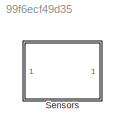
MODEL slx_99f6ecf49d35
KIND model
CONFIG AbsTol = auto
CONFIG EnableMultiTasking = off
CONFIG FixedStep = auto
CONFIG MaxStep = auto
CONFIG MinStep = auto
CONFIG RelTol = 1e-3
CONFIG SampleTimeConstraint = Unconstrained
CONFIG SolverName = VariableStepAuto
CONFIG StartTime = 0.0
CONFIG StopTime = 100
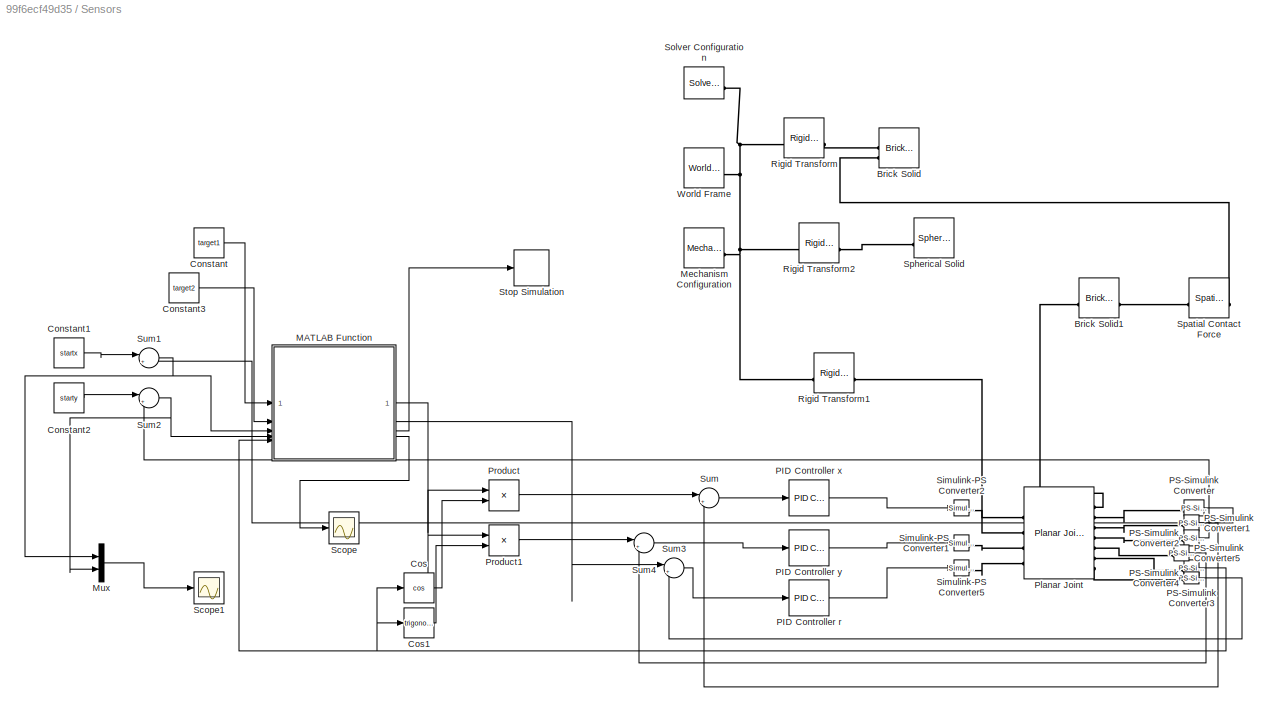
BLOCK [SubSystem] Sensors
BLOCK [Reference] Sensors/Brick Solid  REF=sm_lib/Body Elements/Brick Solid
  NameLocation = left
  SourceBlock = sm_lib/Body Elements/Brick Solid
  SourceType = Brick Solid
BLOCK [Reference] Sensors/Brick Solid1  REF=sm_lib/Body Elements/Brick Solid
  SourceBlock = sm_lib/Body Elements/Brick Solid
  SourceType = Brick Solid
BLOCK [Constant] Sensors/Constant
  Value = target1
BLOCK [Constant] Sensors/Constant1
  Value = startx
BLOCK [Constant] Sensors/Constant2
  Value = starty
BLOCK [Constant] Sensors/Constant3
  Value = target2
BLOCK [Trigonometry] Sensors/Cos
  Operator = cos
BLOCK [Trigonometry] Sensors/Cos1
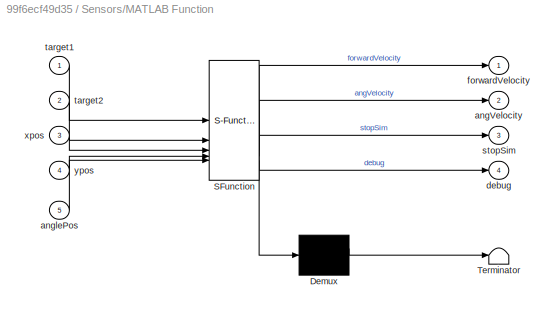
BLOCK [SubSystem] Sensors/MATLAB Function
  ErrorFcn = Stateflow.Translate.translate
  LibrarySourceBlock = simulink/User-Defined\nFunctions/MATLAB Function
  PermitHierarchicalResolution = ExplicitOnly
  SFBlockType = MATLAB Function
  SystemSampleTime = 0.1
  TreatAsAtomicUnit = on
BLOCK [Demux] Sensors/MATLAB Function/ Demux 
  Outputs = 1
BLOCK [S-Function] Sensors/MATLAB Function/ SFunction 
  EnableBusSupport = on
  FunctionName = sf_sfun
  PortCounts = [5 5]
  SFcnIsStateOwnerBlock = off
  SFunctionDeploymentMode = off
  Tag = Stateflow S-Function 2
BLOCK [Terminator] Sensors/MATLAB Function/ Terminator 
BLOCK [Outport] Sensors/MATLAB Function/angVelocity
  Port = 2
BLOCK [Inport] Sensors/MATLAB Function/anglePos
  Port = 5
BLOCK [Outport] Sensors/MATLAB Function/debug
  Port = 4
BLOCK [Outport] Sensors/MATLAB Function/forwardVelocity
BLOCK [Outport] Sensors/MATLAB Function/stopSim
  Port = 3
BLOCK [Inport] Sensors/MATLAB Function/target1
BLOCK [Inport] Sensors/MATLAB Function/target2
  Port = 2
BLOCK [Inport] Sensors/MATLAB Function/xpos
  Port = 3
BLOCK [Inport] Sensors/MATLAB Function/ypos
  Port = 4
BLOCK [Reference] Sensors/Mechanism Configuration  REF=sm_lib/Utilities/Mechanism
Configuration
  SourceBlock = sm_lib/Utilities/Mechanism\nConfiguration
  SourceType = Mechanism\nConfiguration
BLOCK [Mux] Sensors/Mux
  DisplayOption = bar
  Inputs = 2
BLOCK [Reference] Sensors/PID Controller r  REF=slpidlib/PID Controller
  LibrarySourceBlock = simulink/Continuous/PID Controller
  SourceBlock = slpidlib/PID Controller
  SourceType = PID 1dof
BLOCK [Reference] Sensors/PID Controller x  REF=slpidlib/PID Controller
  LibrarySourceBlock = simulink/Continuous/PID Controller
  SourceBlock = slpidlib/PID Controller
  SourceType = PID 1dof
BLOCK [Reference] Sensors/PID Controller y  REF=slpidlib/PID Controller
  LibrarySourceBlock = simulink/Continuous/PID Controller
  SourceBlock = slpidlib/PID Controller
  SourceType = PID 1dof
BLOCK [Reference] Sensors/PS-Simulink Converter  REF=nesl_utility/PS-Simulink
Converter
  SourceBlock = nesl_utility/PS-Simulink\nConverter
  SourceType = PS-Simulink\nConverter
BLOCK [Reference] Sensors/PS-Simulink Converter1  REF=nesl_utility/PS-Simulink
Converter
  SourceBlock = nesl_utility/PS-Simulink\nConverter
  SourceType = PS-Simulink\nConverter
BLOCK [Reference] Sensors/PS-Simulink Converter2  REF=nesl_utility/PS-Simulink
Converter
  SourceBlock = nesl_utility/PS-Simulink\nConverter
  SourceType = PS-Simulink\nConverter
BLOCK [Reference] Sensors/PS-Simulink Converter3  REF=nesl_utility/PS-Simulink
Converter
  SourceBlock = nesl_utility/PS-Simulink\nConverter
  SourceType = PS-Simulink\nConverter
BLOCK [Reference] Sensors/PS-Simulink Converter4  REF=nesl_utility/PS-Simulink
Converter
  SourceBlock = nesl_utility/PS-Simulink\nConverter
  SourceType = PS-Simulink\nConverter
BLOCK [Reference] Sensors/PS-Simulink Converter5  REF=nesl_utility/PS-Simulink
Converter
  SourceBlock = nesl_utility/PS-Simulink\nConverter
  SourceType = PS-Simulink\nConverter
BLOCK [Reference] Sensors/Planar Joint  REF=sm_lib/Joints/Planar Joint
  SourceBlock = sm_lib/Joints/Planar Joint
  SourceType = Planar Joint
BLOCK [Product] Sensors/Product
BLOCK [Product] Sensors/Product1
BLOCK [Reference] Sensors/Rigid Transform  REF=sm_lib/Frames and
Transforms/Rigid
Transform
  SourceBlock = sm_lib/Frames and\nTransforms/Rigid\nTransform
  SourceType = Rigid\nTransform
BLOCK [Reference] Sensors/Rigid Transform1  REF=sm_lib/Frames and
Transforms/Rigid
Transform
  SourceBlock = sm_lib/Frames and\nTransforms/Rigid\nTransform
  SourceType = Rigid\nTransform
BLOCK [Reference] Sensors/Rigid Transform2  REF=sm_lib/Frames and
Transforms/Rigid
Transform
  SourceBlock = sm_lib/Frames and\nTransforms/Rigid\nTransform
  SourceType = Rigid\nTransform
BLOCK [Scope] Sensors/Scope
  Floating = off
  NumInputPorts = 1
  ScopeSpecificationString = Simulink.scopes.TimeScopeBlockCfg('CurrentConfiguration', extmgr.ConfigurationSet(extmgr.Configuration('Core','General UI',true),extmgr.Configuration('Core','Source UI',true),extmgr.Configuration('Sources','WiredSimulink',true),extmgr.Configuration('Visuals','Time Domain',true,'SerializedDisplays',{struct('MinYLimReal','-0.75','MaxYLimReal','16.75','YLabelReal','','MinYLimMag','0.00000','MaxYLimMa...<+1356ch>
BLOCK [Scope] Sensors/Scope1
  Floating = off
  NumInputPorts = 1
  ScopeSpecificationString = Simulink.scopes.TimeScopeBlockCfg('CurrentConfiguration', extmgr.ConfigurationSet(extmgr.Configuration('Core','General UI',true),extmgr.Configuration('Core','Source UI',true),extmgr.Configuration('Sources','WiredSimulink',true,'DataLoggingVariableName','ScopeData1'),extmgr.Configuration('Visuals','Time Domain',true,'SerializedDisplays',{struct('MinYLimReal','-0.12626','MaxYLimReal','21.13635','YLa...<+1691ch>
BLOCK [Reference] Sensors/Simulink-PS Converter1  REF=nesl_utility/Simulink-PS
Converter
  SourceBlock = nesl_utility/Simulink-PS\nConverter
  SourceType = Simulink-PS\nConverter
BLOCK [Reference] Sensors/Simulink-PS Converter2  REF=nesl_utility/Simulink-PS
Converter
  SourceBlock = nesl_utility/Simulink-PS\nConverter
  SourceType = Simulink-PS\nConverter
BLOCK [Reference] Sensors/Simulink-PS Converter5  REF=nesl_utility/Simulink-PS
Converter
  SourceBlock = nesl_utility/Simulink-PS\nConverter
  SourceType = Simulink-PS\nConverter
BLOCK [Reference] Sensors/Solver Configuration  REF=nesl_utility/Solver
Configuration
  SourceBlock = nesl_utility/Solver\nConfiguration
  SourceType = Solver\nConfiguration
BLOCK [Reference] Sensors/Spatial Contact Force  REF=sm_lib/Forces and
Torques/Spatial
Contact Force
  SourceBlock = sm_lib/Forces and\nTorques/Spatial\nContact Force
  SourceType = Spatial\nContact Force
BLOCK [Reference] Sensors/Spherical Solid  REF=sm_lib/Body Elements/Spherical Solid
  SourceBlock = sm_lib/Body Elements/Spherical Solid
  SourceType = Spherical Solid
BLOCK [Stop] Sensors/Stop Simulation
BLOCK [Sum] Sensors/Sum
  Inputs = |+-
BLOCK [Sum] Sensors/Sum1
  Inputs = |++
BLOCK [Sum] Sensors/Sum2
  Inputs = |++
BLOCK [Sum] Sensors/Sum3
  Inputs = |+-
BLOCK [Sum] Sensors/Sum4
  Inputs = |+-
BLOCK [Reference] Sensors/World Frame  REF=sm_lib/Frames and
Transforms/World Frame
  SourceBlock = sm_lib/Frames and\nTransforms/World Frame
  SourceType = World Frame
LINE Sensors/Constant1:1 -> Sensors/Sum1:1
LINE Sensors/Constant2:1 -> Sensors/Sum2:1
LINE Sensors/Constant3:1 -> Sensors/MATLAB Function:2
LINE Sensors/Constant:1 -> Sensors/MATLAB Function:1
LINE Sensors/Cos1:1 -> Sensors/Product1:2
LINE Sensors/Cos:1 -> Sensors/Product:2
NET Sensors/MATLAB Function:1 -> Sensors/Product1:1, Sensors/Product:1
LINE Sensors/MATLAB Function:2 -> Sensors/Sum3:1
LINE Sensors/MATLAB Function:3 -> Sensors/Stop Simulation:1
LINE Sensors/MATLAB Function:4 -> Sensors/Scope:1
LINE Sensors/Mux:1 -> Sensors/Scope1:1
LINE Sensors/PID Controller r:1 -> Sensors/Simulink-PS Converter5:1
LINE Sensors/PID Controller x:1 -> Sensors/Simulink-PS Converter2:1
LINE Sensors/PID Controller y:1 -> Sensors/Simulink-PS Converter1:1
LINE Sensors/PS-Simulink Converter1:1 -> Sensors/Sum:2
LINE Sensors/PS-Simulink Converter2:1 -> Sensors/Sum2:2
NET Sensors/PS-Simulink Converter3:1 -> Sensors/Cos1:1, Sensors/Cos:1, Sensors/MATLAB Function:5
LINE Sensors/PS-Simulink Converter4:1 -> Sensors/Sum3:2
LINE Sensors/PS-Simulink Converter5:1 -> Sensors/Sum4:2
LINE Sensors/PS-Simulink Converter:1 -> Sensors/Sum1:2
LINE Sensors/Product1:1 -> Sensors/Sum4:1
LINE Sensors/Product:1 -> Sensors/Sum:1
NET Sensors/Sum1:1 -> Sensors/MATLAB Function:3, Sensors/Mux:1
NET Sensors/Sum2:1 -> Sensors/MATLAB Function:4, Sensors/Mux:2
LINE Sensors/Sum3:1 -> Sensors/PID Controller r:1
LINE Sensors/Sum4:1 -> Sensors/PID Controller y:1
LINE Sensors/Sum:1 -> Sensors/PID Controller x:1
PLINE Sensors/Brick Solid1:LConn1 -- Sensors/Spatial Contact Force:LConn1
PLINE Sensors/Brick Solid1:RConn1 -- Sensors/Planar Joint:RConn1
PLINE Sensors/Brick Solid:LConn1 -- Sensors/Rigid Transform:RConn1
PLINE Sensors/Brick Solid:LConn2 -- Sensors/Spatial Contact Force:RConn1
PNET net1: Sensors/Mechanism Configuration:RConn1 -- Sensors/Rigid Transform1:LConn1 -- Sensors/Rigid Transform2:LConn1 -- Sensors/Rigid Transform:LConn1 -- Sensors/Solver Configuration:RConn1 -- Sensors/World Frame:RConn1
PLINE Sensors/PS-Simulink Converter1:LConn1 -- Sensors/Planar Joint:RConn3
PLINE Sensors/PS-Simulink Converter2:LConn1 -- Sensors/Planar Joint:RConn4
PLINE Sensors/PS-Simulink Converter3:LConn1 -- Sensors/Planar Joint:RConn6
PLINE Sensors/PS-Simulink Converter4:LConn1 -- Sensors/Planar Joint:RConn7
PLINE Sensors/PS-Simulink Converter5:LConn1 -- Sensors/Planar Joint:RConn5
PLINE Sensors/PS-Simulink Converter:LConn1 -- Sensors/Planar Joint:RConn2
PLINE Sensors/Planar Joint:LConn1 -- Sensors/Rigid Transform1:RConn1
PLINE Sensors/Planar Joint:LConn2 -- Sensors/Simulink-PS Converter2:RConn1
PLINE Sensors/Planar Joint:LConn3 -- Sensors/Simulink-PS Converter1:RConn1
PLINE Sensors/Planar Joint:LConn4 -- Sensors/Simulink-PS Converter5:RConn1
PLINE Sensors/Rigid Transform2:RConn1 -- Sensors/Spherical Solid:RConn1
note: NET lines group one-source signal fan-out (src -> all destinations, sorted); 1:1 wires keep LINE; PNET lines group multi-terminal physical nets as a canonical sorted terminal list (undirected conserving connections); 2-terminal nets keep the pairwise PLINE form
CHART Sensors/MATLAB Function states=1 transitions=1
  STATE_LABEL 'eML_blk_kernel()'
  STATE_LABEL 'SCRIPT:\nfunction [forwardVelocity,angVelocity,stopSim,debug] = pathChaser(target1,target2,xpos,ypos,anglePos)\n\n\n%used to keep track of the current target\npersistent currentTarget;\npersistent path;\n\nif isempty(currentTarget)\n    currentTarget = 1;\nend\n\nif isempty(path)\n    path =1;\nend\n\n\n\n\n\nrotMoveSpeed=1;\nif path==1\n    target=target1;\nelseif path==2\n    target=target2;\nelse\n    target=target1;\nen...<+1954ch>'
CHART  states=0 transitions=0
